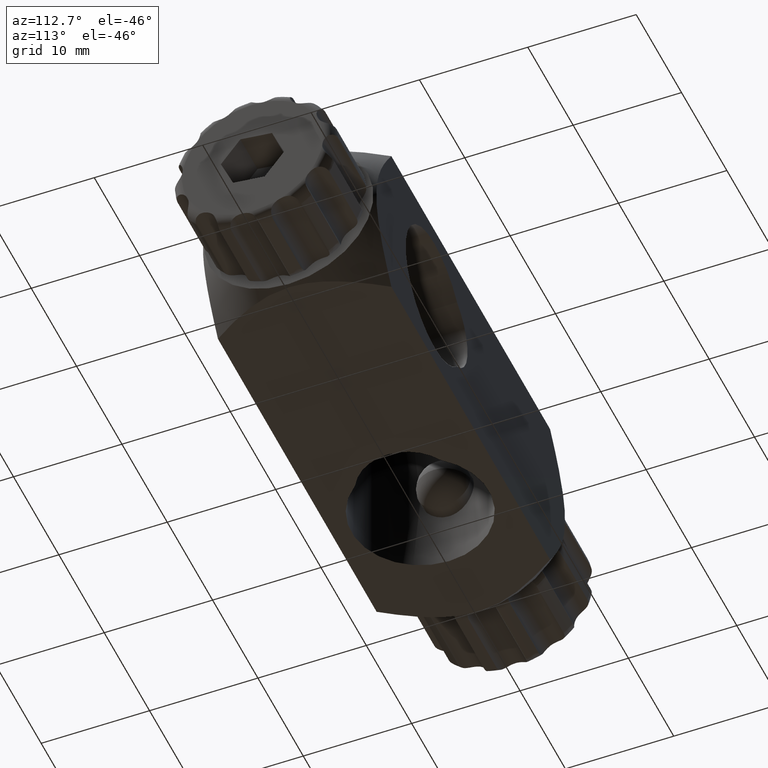
[diagram: clean part render]
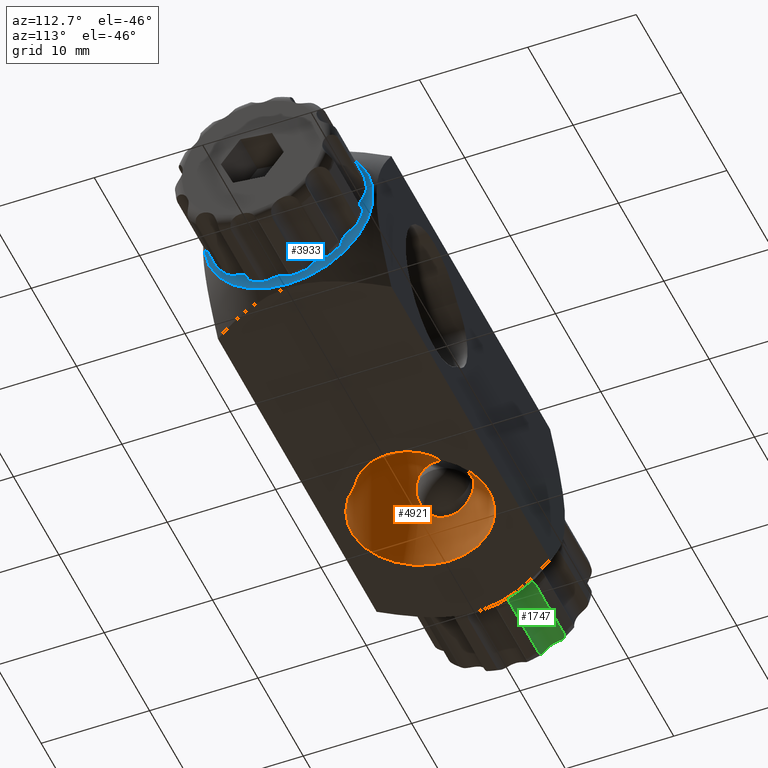
[diagram: same view with three faces highlighted in distinct colors, each labeled with its STEP entity id]
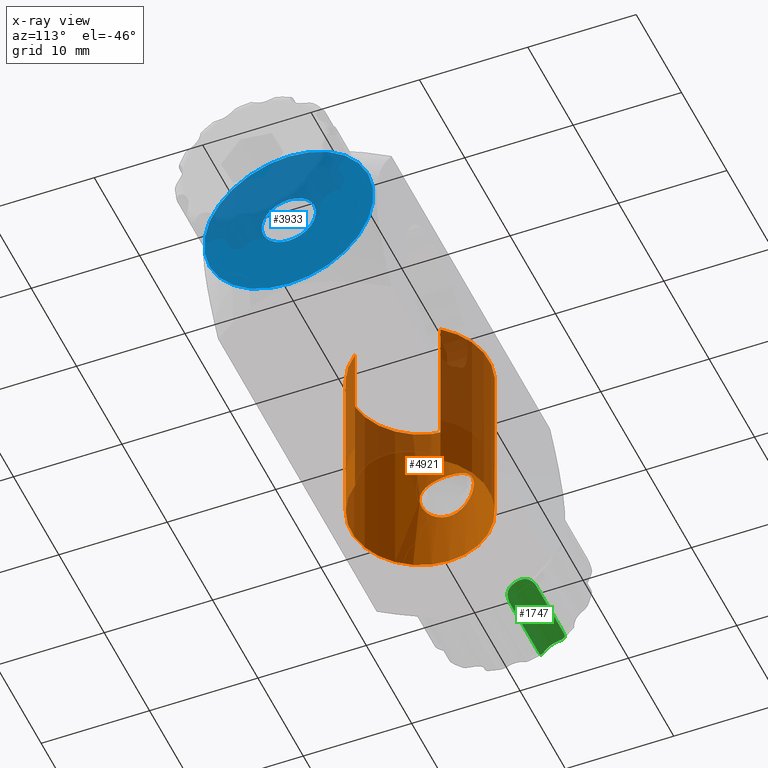
[diagram: x-ray of the same camera — body ghosted, the three highlighted faces saturated]
A machine part, auxiliary view with three faces highlighted in distinct colors.
The next image is the same camera in x-ray (body ghosted, the three faces saturated) — at least one of them is partly hidden behind the body in this view.
Their STEP definitions:

[orange] entity #4921 — the highlighted cylindrical surface (partial cylindrical patch) has radius 6.35 mm, axis along (-0, -0, 1).
#31 = FACE_OUTER_BOUND ( 'NONE', #5584, .T. ) ;
#37 = CARTESIAN_POINT ( 'NONE',  ( -3.015625000000004400, -3.934273231408192300, -8.000000000000001800 ) ) ;
#122 = CARTESIAN_POINT ( 'NONE',  ( -3.015625000000005300, 3.934273231408183000, -8.000000000000001800 ) ) ;
#158 = EDGE_CURVE ( 'NONE', #611, #4050, #5138, .T. ) ;
#212 = CARTESIAN_POINT ( 'NONE',  ( -14.13172896268371700, 1.654839254193530000, 1.880834396446849200 ) ) ;
#248 = CIRCLE ( 'NONE', #2077, 6.349999999999997900 ) ;
#252 = CARTESIAN_POINT ( 'NONE',  ( -14.25347996361839600, -1.113493676438426400, -2.244314672657440600 ) ) ;
#292 = CARTESIAN_POINT ( 'NONE',  ( -14.13216469679574200, -1.653323227653048100, -1.882326954693307900 ) ) ;
#313 = CARTESIAN_POINT ( 'NONE',  ( -13.94044340418666600, -2.244592129086695900, -1.112900411000519800 ) ) ;
#340 = CARTESIAN_POINT ( 'NONE',  ( -14.22570982550885400, 1.257857552226984600, -2.166622944121659800 ) ) ;
#360 = CARTESIAN_POINT ( 'NONE',  ( -14.16496897687906700, 1.528013732677355100, -1.985355040399142700 ) ) ;
#363 = CARTESIAN_POINT ( 'NONE',  ( -13.89126683038930900, -2.370653256234590300, 0.8102924420412346300 ) ) ;
#446 = CARTESIAN_POINT ( 'NONE',  ( -13.84408939167750700, -2.484020929136849800, 0.3273140950940555100 ) ) ;
#483 = EDGE_CURVE ( 'NONE', #544, #5245, #5664, .T. ) ;
#544 = VERTEX_POINT ( 'NONE', #4474 ) ;
#611 = VERTEX_POINT ( 'NONE', #4125 ) ;
#671 = CARTESIAN_POINT ( 'NONE',  ( -13.87140204642246600, 2.418754730980461300, 0.6533290556737960700 ) ) ;
#688 = CARTESIAN_POINT ( 'NONE',  ( -14.06527732931933300, -1.883913814681461800, 1.651408318361197600 ) ) ;
#691 = CARTESIAN_POINT ( 'NONE',  ( -14.34999999999999800, 0.1670052560347165500, 2.499999999999998200 ) ) ;
#763 = CARTESIAN_POINT ( 'NONE',  ( -14.31822033418063000, 0.6551695558147968600, -2.418329425781971000 ) ) ;
#789 = ORIENTED_EDGE ( 'NONE', *, *, #3823, .F. ) ;
#816 = CARTESIAN_POINT ( 'NONE',  ( -3.015625000000004400, -3.934273231408192300, -8.000000000000001800 ) ) ;
#844 = DIRECTION ( 'NONE',  ( 1.000000000000000000, 0.0000000000000000000, 0.0000000000000000000 ) ) ;
#1050 = ORIENTED_EDGE ( 'NONE', *, *, #4034, .F. ) ;
#1122 = CARTESIAN_POINT ( 'NONE',  ( -13.84447391096468400, -2.483115506086709600, -0.3333056063548998600 ) ) ;
#1130 = CARTESIAN_POINT ( 'NONE',  ( -13.83720769546859400, 2.499901264329393900, 0.1664818283837850900 ) ) ;
#1145 = CARTESIAN_POINT ( 'NONE',  ( -14.35000000000000000, -0.3337368907152389900, 2.499999999999999600 ) ) ;
#1195 = CARTESIAN_POINT ( 'NONE',  ( -14.29965261527076600, 0.8125500498634692400, 2.369929866894745700 ) ) ;
#1213 = CARTESIAN_POINT ( 'NONE',  ( -14.22536665960977600, -1.259462481610970300, 2.165618936399530200 ) ) ;
#1233 = CARTESIAN_POINT ( 'NONE',  ( -8.000000000000000000, -4.959040015105592400E-015, -8.000000000000001800 ) ) ;
#1351 = CARTESIAN_POINT ( 'NONE',  ( -13.83713559730295200, -2.500069603924885100, 0.1636528481095288200 ) ) ;
#1676 = CARTESIAN_POINT ( 'NONE',  ( -14.31823850436184400, -0.6547901640278633900, -2.418375358319274400 ) ) ;
#1727 = ORIENTED_EDGE ( 'NONE', *, *, #2632, .T. ) ;
#1773 = CARTESIAN_POINT ( 'NONE',  ( -14.34999999999999800, 3.061961285247820200E-016, -2.499999999999998700 ) ) ;
#1959 = CARTESIAN_POINT ( 'NONE',  ( -13.87128775960040600, -2.419033037863248300, 0.6525133370002852400 ) ) ;
#2008 = EDGE_LOOP ( 'NONE', ( #3451, #5899 ) ) ;
#2033 = AXIS2_PLACEMENT_3D ( 'NONE', #1233, #2598, #844 ) ;
#2035 = CARTESIAN_POINT ( 'NONE',  ( -14.16491645915140100, 1.528243350837978900, 1.985197300683375400 ) ) ;
#2055 = CARTESIAN_POINT ( 'NONE',  ( -13.89158767130358800, 2.369854069492605600, 0.8125384149744500100 ) ) ;
#2077 = AXIS2_PLACEMENT_3D ( 'NONE', #2860, #3302, #4695 ) ;
#2142 = CARTESIAN_POINT ( 'NONE',  ( -14.06526764141080600, -1.883998408115061100, -1.651418316987550300 ) ) ;
#2165 = CARTESIAN_POINT ( 'NONE',  ( -13.94074800801573800, 2.243805662632202500, -1.114709136041922100 ) ) ;
#2205 = VERTEX_POINT ( 'NONE', #37 ) ;
#2231 = CARTESIAN_POINT ( 'NONE',  ( -14.25371390070333200, 1.112062076422148500, -2.244956815813538700 ) ) ;
#2338 = CARTESIAN_POINT ( 'NONE',  ( -14.34999999999999800, 3.061961285247820200E-016, -2.499999999999998700 ) ) ;
#2375 = AXIS2_PLACEMENT_3D ( 'NONE', #4859, #5316, #5781 ) ;
#2573 = CARTESIAN_POINT ( 'NONE',  ( -14.34345367860668400, -0.3308827349372127100, -2.483506824704531100 ) ) ;
#2596 = CARTESIAN_POINT ( 'NONE',  ( -14.16494170497117700, -1.528067802851343000, -1.985256475623171000 ) ) ;
#2598 = DIRECTION ( 'NONE',  ( -0.0000000000000000000, -0.0000000000000000000, 1.000000000000000000 ) ) ;
#2625 = CARTESIAN_POINT ( 'NONE',  ( -13.83712350047344600, 2.500097848415963500, -0.1635031465250330900 ) ) ;
#2632 = EDGE_CURVE ( 'NONE', #5251, #611, #5835, .T. ) ;
#2860 = CARTESIAN_POINT ( 'NONE',  ( -8.000000000000000000, -4.959040015105592400E-015, -8.000000000000001800 ) ) ;
#2946 = CYLINDRICAL_SURFACE ( 'NONE', #2033, 6.349999999999997900 ) ;
#2979 = CARTESIAN_POINT ( 'NONE',  ( -14.29982596625635200, -0.8112167513848015400, -2.370388976443850800 ) ) ;
#3026 = CARTESIAN_POINT ( 'NONE',  ( -14.22543969174414400, -1.259125919144092400, -2.165833881869569900 ) ) ;
#3050 = CARTESIAN_POINT ( 'NONE',  ( -13.96981147398342500, -2.166314103494729500, -1.258246010290663200 ) ) ;
#3055 = CARTESIAN_POINT ( 'NONE',  ( -13.96970248567963900, 2.166626170258861600, -1.257768098644152200 ) ) ;
#3075 = CARTESIAN_POINT ( 'NONE',  ( -14.13234225935973500, 1.652601093403433400, -1.882846977765329200 ) ) ;
#3088 = DIRECTION ( 'NONE',  ( -0.0000000000000000000, -0.0000000000000000000, 1.000000000000000000 ) ) ;
#3119 = CARTESIAN_POINT ( 'NONE',  ( -14.29977300219576700, 0.8114676422826513400, -2.370239108658077000 ) ) ;
#3302 = DIRECTION ( 'NONE',  ( 0.0000000000000000000, 0.0000000000000000000, 1.000000000000000000 ) ) ;
#3397 = CARTESIAN_POINT ( 'NONE',  ( -13.96482053884998300, 2.182079360770837500, 1.262631224585148100 ) ) ;
#3433 = CARTESIAN_POINT ( 'NONE',  ( -14.32301987721942600, -0.6606950071700666800, 2.433529377776407500 ) ) ;
#3451 = ORIENTED_EDGE ( 'NONE', *, *, #483, .T. ) ;
#3498 = CARTESIAN_POINT ( 'NONE',  ( -13.89135685853433200, -2.370437940487647200, -0.8110272011836292500 ) ) ;
#3823 = EDGE_CURVE ( 'NONE', #2205, #4050, #5666, .T. ) ;
#3842 = CARTESIAN_POINT ( 'NONE',  ( -13.87163103844635100, -2.418199094547111500, -0.6551857621525335500 ) ) ;
#3850 = CARTESIAN_POINT ( 'NONE',  ( -13.84425515653929200, 2.483630025716011300, 0.3298411723691566100 ) ) ;
#3919 = CARTESIAN_POINT ( 'NONE',  ( -14.31841640803168000, 0.6528239031078418900, 2.418837073343113300 ) ) ;
#3934 = CARTESIAN_POINT ( 'NONE',  ( -14.13173334403027000, -1.654861486774669800, 1.880881217591940900 ) ) ;
#4020 = CARTESIAN_POINT ( 'NONE',  ( -13.96949147208055400, -2.167217575877309300, 1.256806913575973000 ) ) ;
#4025 = CARTESIAN_POINT ( 'NONE',  ( -14.03214572902389200, 1.986160777228027900, -1.526897153910001100 ) ) ;
#4034 = EDGE_CURVE ( 'NONE', #5251, #2205, #248, .T. ) ;
#4036 = VECTOR ( 'NONE', #3088, 1000.000000000000000 ) ;
#4050 = VERTEX_POINT ( 'NONE', #4174 ) ;
#4095 = CARTESIAN_POINT ( 'NONE',  ( -3.015625000000005300, 3.934273231408183000, -8.000000000000001800 ) ) ;
#4125 = CARTESIAN_POINT ( 'NONE',  ( -3.015625000000005300, 3.934273231408183000, 7.999999999999998200 ) ) ;
#4174 = CARTESIAN_POINT ( 'NONE',  ( -3.015625000000004400, -3.934273231408192300, 7.999999999999998200 ) ) ;
#4318 = CARTESIAN_POINT ( 'NONE',  ( -14.03209565870216800, -1.986323845877215000, 1.526732857609161000 ) ) ;
#4384 = CARTESIAN_POINT ( 'NONE',  ( -14.25326463729966000, 1.114693694482277200, 2.243716364653591400 ) ) ;
#4457 = FACE_BOUND ( 'NONE', #2008, .T. ) ;
#4474 = CARTESIAN_POINT ( 'NONE',  ( -14.34999999999999800, -1.812984477257553200E-017, 2.499999999999998700 ) ) ;
#4496 = CARTESIAN_POINT ( 'NONE',  ( -13.87140766354362000, 2.418739646384807900, -0.6532222925862508600 ) ) ;
#4553 = VECTOR ( 'NONE', #4579, 1000.000000000000000 ) ;
#4579 = DIRECTION ( 'NONE',  ( -0.0000000000000000000, -0.0000000000000000000, 1.000000000000000000 ) ) ;
#4695 = DIRECTION ( 'NONE',  ( 1.000000000000000000, 0.0000000000000000000, 0.0000000000000000000 ) ) ;
#4761 = CARTESIAN_POINT ( 'NONE',  ( -14.34999999999999800, -1.812984477257553200E-017, 2.499999999999998700 ) ) ;
#4778 = CARTESIAN_POINT ( 'NONE',  ( -14.03252207850613300, 1.996884946228188600, 1.538367461901342300 ) ) ;
#4797 = CARTESIAN_POINT ( 'NONE',  ( -14.25293111887699200, -1.116692431976079400, 2.242798206174033500 ) ) ;
#4824 = CARTESIAN_POINT ( 'NONE',  ( -14.34342725948733000, 0.3309011292607259600, 2.483436385032243200 ) ) ;
#4838 = EDGE_CURVE ( 'NONE', #5245, #544, #5438, .T. ) ;
#4841 = CARTESIAN_POINT ( 'NONE',  ( -14.34999999999999800, 3.061961285247820200E-016, -2.499999999999998700 ) ) ;
#4848 = CARTESIAN_POINT ( 'NONE',  ( -14.22574487267798700, 1.257705636474601800, 2.166728546449939500 ) ) ;
#4859 = CARTESIAN_POINT ( 'NONE',  ( -8.000000000000000000, -4.959040015105592400E-015, 7.999999999999998200 ) ) ;
#4895 = CARTESIAN_POINT ( 'NONE',  ( -13.84433902816496700, 2.483431245752584000, -0.3310137280311985000 ) ) ;
#4921 = ADVANCED_FACE ( 'NONE', ( #4457, #31 ), #2946, .F. ) ;
#4957 = CARTESIAN_POINT ( 'NONE',  ( -14.34999999999999600, 0.1644882718953178400, -2.499999999999998700 ) ) ;
#5138 = CIRCLE ( 'NONE', #2375, 6.349999999999997900 ) ;
#5245 = VERTEX_POINT ( 'NONE', #2338 ) ;
#5251 = VERTEX_POINT ( 'NONE', #122 ) ;
#5305 = CARTESIAN_POINT ( 'NONE',  ( -14.16496181220272600, -1.527966505931567200, 1.985313445536793600 ) ) ;
#5316 = DIRECTION ( 'NONE',  ( 0.0000000000000000000, 0.0000000000000000000, 1.000000000000000000 ) ) ;
#5349 = CARTESIAN_POINT ( 'NONE',  ( -14.06599150924530900, 1.881610738067601300, -1.654008508438500800 ) ) ;
#5395 = CARTESIAN_POINT ( 'NONE',  ( -14.34354031304847300, 0.3296234743597767400, -2.483729599537861000 ) ) ;
#5438 = B_SPLINE_CURVE_WITH_KNOTS ( 'NONE', 3,
 ( #4841, #5716, #2573, #1676, #2979, #252, #3026, #2596, #292, #2142, #5783, #3050, #313, #3498, #3842, #1122, #5529, #1351, #446, #1959, #363, #5886, #4020, #4318, #688, #3934, #5305, #1213, #4797, #3433, #1145, #5739 ),
 .UNSPECIFIED., .F., .F.,
 ( 4, 2, 2, 2, 2, 2, 2, 2, 2, 2, 2, 2, 2, 2, 2, 4 ),
 ( 0.007896926305771944500, 0.008390079877340495300, 0.008883233448909047900, 0.009376387020477598700, 0.009869540592046151300, 0.01036269416361470200, 0.01085584773518325300, 0.01134900130675180500, 0.01184215487832035800, 0.01233530844988890900, 0.01282846202145746000, 0.01332161559302601200, 0.01381476916459456300, 0.01430792273616311400, 0.01480107630773166500, 0.01578738345086876500 ),
 .UNSPECIFIED. ) ;
#5440 = ORIENTED_EDGE ( 'NONE', *, *, #158, .T. ) ;
#5529 = CARTESIAN_POINT ( 'NONE',  ( -13.83719541107450000, -2.499929946758759200, -0.1657725564206506700 ) ) ;
#5584 = EDGE_LOOP ( 'NONE', ( #5440, #789, #1050, #1727 ) ) ;
#5664 = B_SPLINE_CURVE_WITH_KNOTS ( 'NONE', 3,
 ( #4761, #691, #4824, #3919, #1195, #4384, #4848, #2035, #212, #4778, #3397, #2055, #671, #3850, #1130, #2625, #4895, #4496, #5810, #2165, #3055, #4025, #5349, #3075, #360, #340, #2231, #3119, #763, #5395, #4957, #1773 ),
 .UNSPECIFIED., .F., .F.,
 ( 4, 2, 2, 2, 2, 2, 2, 2, 2, 2, 2, 2, 2, 2, 2, 4 ),
 ( 1.759411807129300900E-020, 0.0004935578941107453400, 0.0009871157882214906800, 0.001480673682332236300, 0.001974231576442982200, 0.002961347364664474000, 0.003454905258775220700, 0.003948463152885967900, 0.004442021046996715500, 0.004935578941107461400, 0.005429136835218209000, 0.005922694729328955800, 0.006416252623439703400, 0.006909810517550450100, 0.007403368411661196900, 0.007896926305771944500 ),
 .UNSPECIFIED. ) ;
#5666 = LINE ( 'NONE', #816, #4036 ) ;
#5716 = CARTESIAN_POINT ( 'NONE',  ( -14.35000000000000000, -0.1643535231311941700, -2.499999999999998700 ) ) ;
#5739 = CARTESIAN_POINT ( 'NONE',  ( -14.34999999999999800, -1.812984477257553200E-017, 2.499999999999998700 ) ) ;
#5781 = DIRECTION ( 'NONE',  ( 1.000000000000000000, 0.0000000000000000000, 0.0000000000000000000 ) ) ;
#5783 = CARTESIAN_POINT ( 'NONE',  ( -14.03207835756312400, -1.986352566419873100, -1.526598604509296300 ) ) ;
#5810 = CARTESIAN_POINT ( 'NONE',  ( -13.89118823250886000, 2.370875778178274600, -0.8100545377215174800 ) ) ;
#5835 = LINE ( 'NONE', #4095, #4553 ) ;
#5886 = CARTESIAN_POINT ( 'NONE',  ( -13.94014848355173800, -2.245363605632499000, 1.111266386347497200 ) ) ;
#5899 = ORIENTED_EDGE ( 'NONE', *, *, #4838, .T. ) ;

[blue] entity #3933 — the highlighted planar face has unit normal (1, 0, 0).
#55 = EDGE_CURVE ( 'NONE', #1850, #5602, #501, .T. ) ;
#282 = EDGE_CURVE ( 'NONE', #5034, #2828, #3572, .T. ) ;
#501 = CIRCLE ( 'NONE', #4376, 7.813708498984763800 ) ;
#624 = DIRECTION ( 'NONE',  ( 1.000000000000000000, -0.0000000000000000000, -0.0000000000000000000 ) ) ;
#783 = CARTESIAN_POINT ( 'NONE',  ( 21.00000000000000000, 3.061616997868382600E-016, 2.499999999999999600 ) ) ;
#939 = DIRECTION ( 'NONE',  ( 0.0000000000000000000, 0.0000000000000000000, 1.000000000000000000 ) ) ;
#949 = DIRECTION ( 'NONE',  ( 0.0000000000000000000, 0.0000000000000000000, -1.000000000000000000 ) ) ;
#1085 = CARTESIAN_POINT ( 'NONE',  ( 21.00000000000000000, 0.0000000000000000000, 0.0000000000000000000 ) ) ;
#1121 = CARTESIAN_POINT ( 'NONE',  ( 21.00000000000000000, -6.390832896180910600E-016, -5.875514437286082500E-016 ) ) ;
#1156 = EDGE_CURVE ( 'NONE', #5602, #1850, #1357, .T. ) ;
#1357 = CIRCLE ( 'NONE', #1878, 7.813708498984763800 ) ;
#1377 = CARTESIAN_POINT ( 'NONE',  ( 21.00000000000000000, -8.000000000000000000, 7.999999999999998200 ) ) ;
#1388 = CIRCLE ( 'NONE', #4776, 2.499999999999999600 ) ;
#1413 = CARTESIAN_POINT ( 'NONE',  ( 21.00000000000000000, 5.355791328538840600E-016, -7.813708498984763800 ) ) ;
#1671 = DIRECTION ( 'NONE',  ( 0.0000000000000000000, 0.0000000000000000000, 1.000000000000000000 ) ) ;
#1738 = ORIENTED_EDGE ( 'NONE', *, *, #282, .F. ) ;
#1850 = VERTEX_POINT ( 'NONE', #1899 ) ;
#1878 = AXIS2_PLACEMENT_3D ( 'NONE', #4647, #3221, #939 ) ;
#1899 = CARTESIAN_POINT ( 'NONE',  ( 21.00000000000000000, -6.390832896180910600E-016, 7.813708498984763800 ) ) ;
#1931 = EDGE_LOOP ( 'NONE', ( #3485, #5329 ) ) ;
#2155 = DIRECTION ( 'NONE',  ( -1.000000000000000000, 1.226948711654355100E-018, -1.226948711654355100E-018 ) ) ;
#2267 = FACE_BOUND ( 'NONE', #5595, .T. ) ;
#2784 = DIRECTION ( 'NONE',  ( 1.000000000000000000, -0.0000000000000000000, -0.0000000000000000000 ) ) ;
#2828 = VERTEX_POINT ( 'NONE', #3382 ) ;
#3189 = DIRECTION ( 'NONE',  ( 0.0000000000000000000, 0.0000000000000000000, -1.000000000000000000 ) ) ;
#3221 = DIRECTION ( 'NONE',  ( -1.000000000000000000, 1.226948711654355100E-018, -1.226948711654355100E-018 ) ) ;
#3382 = CARTESIAN_POINT ( 'NONE',  ( 21.00000000000000000, 0.0000000000000000000, -2.499999999999999600 ) ) ;
#3485 = ORIENTED_EDGE ( 'NONE', *, *, #55, .F. ) ;
#3572 = CIRCLE ( 'NONE', #5531, 2.499999999999999600 ) ;
#3656 = CARTESIAN_POINT ( 'NONE',  ( 21.00000000000000000, 0.0000000000000000000, 0.0000000000000000000 ) ) ;
#3801 = DIRECTION ( 'NONE',  ( 0.0000000000000000000, 0.0000000000000000000, -1.000000000000000000 ) ) ;
#3933 = ADVANCED_FACE ( 'NONE', ( #2267, #5532 ), #5017, .T. ) ;
#4183 = ORIENTED_EDGE ( 'NONE', *, *, #5320, .F. ) ;
#4376 = AXIS2_PLACEMENT_3D ( 'NONE', #1121, #2155, #1671 ) ;
#4647 = CARTESIAN_POINT ( 'NONE',  ( 21.00000000000000000, -6.390832896180910600E-016, -5.875514437286082500E-016 ) ) ;
#4776 = AXIS2_PLACEMENT_3D ( 'NONE', #1085, #624, #3801 ) ;
#5017 = PLANE ( 'NONE',  #5865 ) ;
#5034 = VERTEX_POINT ( 'NONE', #783 ) ;
#5320 = EDGE_CURVE ( 'NONE', #2828, #5034, #1388, .T. ) ;
#5329 = ORIENTED_EDGE ( 'NONE', *, *, #1156, .F. ) ;
#5495 = DIRECTION ( 'NONE',  ( 1.000000000000000000, 0.0000000000000000000, 0.0000000000000000000 ) ) ;
#5531 = AXIS2_PLACEMENT_3D ( 'NONE', #3656, #2784, #949 ) ;
#5532 = FACE_OUTER_BOUND ( 'NONE', #1931, .T. ) ;
#5595 = EDGE_LOOP ( 'NONE', ( #4183, #1738 ) ) ;
#5602 = VERTEX_POINT ( 'NONE', #1413 ) ;
#5865 = AXIS2_PLACEMENT_3D ( 'NONE', #1377, #5495, #3189 ) ;

[green] entity #1747 — the highlighted cylindrical surface (edge-blend (fillet) strip) has radius 1.5 mm, axis along (1, 0, -0).
#13 = CARTESIAN_POINT ( 'NONE',  ( -22.00000000000001400, 2.506597273269380200, -7.068731860074954900 ) ) ;
#200 = VERTEX_POINT ( 'NONE', #13 ) ;
#214 = CARTESIAN_POINT ( 'NONE',  ( -21.20119712419117900, 2.525241827674029600, -6.644368451778462700 ) ) ;
#285 = CARTESIAN_POINT ( 'NONE',  ( -21.15333974141502800, 4.411884589735390900, -5.483248911126947800 ) ) ;
#309 = VECTOR ( 'NONE', #4968, 1000.000000000000000 ) ;
#354 = ORIENTED_EDGE ( 'NONE', *, *, #4179, .F. ) ;
#385 = CARTESIAN_POINT ( 'NONE',  ( -28.91852380937766800, 2.594636087784284200, -6.396706854510103600 ) ) ;
#425 = ORIENTED_EDGE ( 'NONE', *, *, #5488, .F. ) ;
#463 = CARTESIAN_POINT ( 'NONE',  ( -28.94361272516191300, 2.629807507927132400, -6.310887486245115400 ) ) ;
#532 = CARTESIAN_POINT ( 'NONE',  ( -27.99999999999998900, 4.868402726730770300, -5.705142845745464300 ) ) ;
#550 = CARTESIAN_POINT ( 'NONE',  ( -29.00000000000000000, 4.000000000000082600, -6.928203230275493700 ) ) ;
#618 = CARTESIAN_POINT ( 'NONE',  ( -21.04540171856379900, 2.620455010895744100, -6.313943153522097300 ) ) ;
#651 = CARTESIAN_POINT ( 'NONE',  ( -24.99999999999999600, 4.868402726730766800, -5.705142845745474900 ) ) ;
#692 = FACE_OUTER_BOUND ( 'NONE', #708, .T. ) ;
#708 = EDGE_LOOP ( 'NONE', ( #1250, #354, #1830, #425, #2881, #3406 ) ) ;
#837 = EDGE_CURVE ( 'NONE', #1645, #3007, #2495, .T. ) ;
#851 = CARTESIAN_POINT ( 'NONE',  ( -28.97727455232851000, 2.715755261027712900, -6.147676713376389700 ) ) ;
#884 = CARTESIAN_POINT ( 'NONE',  ( -28.99876990541139700, 2.949145276068269300, -5.853739619637019900 ) ) ;
#903 = CARTESIAN_POINT ( 'NONE',  ( -28.84668284873058800, 2.542704710136590100, -6.562380101766760500 ) ) ;
#996 = CARTESIAN_POINT ( 'NONE',  ( -29.00000000000000400, 3.250000000000063900, -5.629165124598841000 ) ) ;
#1027 = DIRECTION ( 'NONE',  ( 0.0000000000000000000, -1.734723475976799600E-015, -1.000000000000000000 ) ) ;
#1078 = CARTESIAN_POINT ( 'NONE',  ( -21.00000000000000400, 3.250000000000062600, -5.629165124598825900 ) ) ;
#1096 = CARTESIAN_POINT ( 'NONE',  ( -21.62473436945947100, 2.498681493769682000, -7.013783335347980600 ) ) ;
#1132 = CARTESIAN_POINT ( 'NONE',  ( -21.01882705403932800, 2.709274268148880200, -6.141457041449900300 ) ) ;
#1202 = CARTESIAN_POINT ( 'NONE',  ( -21.38806982832167200, 4.685605186964673800, -5.593010647076644300 ) ) ;
#1241 = CARTESIAN_POINT ( 'NONE',  ( -21.80970709074877300, 4.868402726730755200, -5.705142845745470500 ) ) ;
#1250 = ORIENTED_EDGE ( 'NONE', *, *, #1672, .F. ) ;
#1311 = CARTESIAN_POINT ( 'NONE',  ( -28.19023267080076400, 2.506597273269381500, -7.068731860074937100 ) ) ;
#1365 = CARTESIAN_POINT ( 'NONE',  ( -28.37692889517565200, 2.498667560627065900, -7.012831486871971400 ) ) ;
#1441 = CARTESIAN_POINT ( 'NONE',  ( -28.98116923037342100, 3.964053493655804100, -5.417028248203305200 ) ) ;
#1451 = B_SPLINE_CURVE_WITH_KNOTS ( 'NONE', 3,
 ( #2066, #4272, #2895, #2006, #2912, #2934, #3040, #4352, #3509, #285, #5731, #4853, #1202, #3880, #1241, #3063 ),
 .UNSPECIFIED., .F., .F.,
 ( 4, 2, 2, 2, 2, 2, 2, 4 ),
 ( 0.002339469482553174300, 0.002620738270428532500, 0.002902007058303890200, 0.003183275846179248400, 0.003464544634054606500, 0.003745813421929964700, 0.004027082209805322800, 0.004589619785556047800 ),
 .UNSPECIFIED. ) ;
#1458 = DIRECTION ( 'NONE',  ( 1.000000000000000000, 2.958228394578804800E-031, -9.860761315262730800E-032 ) ) ;
#1499 = CARTESIAN_POINT ( 'NONE',  ( -28.95464743911767500, 4.157683881513740700, -5.426326424277246700 ) ) ;
#1645 = VERTEX_POINT ( 'NONE', #4802 ) ;
#1672 = EDGE_CURVE ( 'NONE', #3644, #5072, #1925, .T. ) ;
#1734 = CARTESIAN_POINT ( 'NONE',  ( -22.00000000000000700, 4.868402726730770300, -5.705142845745452700 ) ) ;
#1747 = ADVANCED_FACE ( 'NONE', ( #692 ), #3335, .F. ) ;
#1830 = ORIENTED_EDGE ( 'NONE', *, *, #5761, .F. ) ;
#1922 = CARTESIAN_POINT ( 'NONE',  ( -28.18804614191825000, 4.868402726730747300, -5.705142845745463400 ) ) ;
#1925 = LINE ( 'NONE', #651, #4058 ) ;
#1992 = B_SPLINE_CURVE_WITH_KNOTS ( 'NONE', 3,
 ( #2949, #2474, #1096, #2018, #5270, #214, #4739, #618, #1132, #2538, #4286, #1078 ),
 .UNSPECIFIED., .F., .F.,
 ( 4, 2, 2, 2, 2, 4 ),
 ( 8.835109272904627900E-005, 0.0006511306901850808400, 0.0009325204889130973400, 0.001213910287641113700, 0.001776689885097144100, 0.002339469482553174300 ),
 .UNSPECIFIED. ) ;
#2006 = CARTESIAN_POINT ( 'NONE',  ( -21.00123062124037400, 3.594967437846115800, -5.480887119189629800 ) ) ;
#2018 = CARTESIAN_POINT ( 'NONE',  ( -21.38812726182524300, 2.500871915247834000, -6.854478821898196000 ) ) ;
#2038 = VERTEX_POINT ( 'NONE', #3097 ) ;
#2066 = CARTESIAN_POINT ( 'NONE',  ( -21.00000000000000400, 3.250000000000062600, -5.629165124598825900 ) ) ;
#2105 = LINE ( 'NONE', #2171, #309 ) ;
#2171 = CARTESIAN_POINT ( 'NONE',  ( -25.00000000000000400, 2.506597273269376200, -7.068731860074969100 ) ) ;
#2236 = CARTESIAN_POINT ( 'NONE',  ( -29.00000000000000400, 3.250000000000063900, -5.629165124598841000 ) ) ;
#2474 = CARTESIAN_POINT ( 'NONE',  ( -21.81187099171115000, 2.506597273269382000, -7.068731860074936300 ) ) ;
#2495 = B_SPLINE_CURVE_WITH_KNOTS ( 'NONE', 3,
 ( #2236, #5470, #4518, #884, #5877, #5024, #851, #463, #385, #903, #4032, #4054, #3197, #1365, #1311, #4481 ),
 .UNSPECIFIED., .F., .F.,
 ( 4, 2, 2, 2, 2, 2, 2, 4 ),
 ( 0.002345318102255120100, 0.002626582659963867100, 0.002907847217672614200, 0.003189111775381361700, 0.003470376333090108700, 0.003751640890798855800, 0.004032905448507603300, 0.004595434563925097400 ),
 .UNSPECIFIED. ) ;
#2538 = CARTESIAN_POINT ( 'NONE',  ( -20.99751958455902200, 2.941840095469301400, -5.848740356000595500 ) ) ;
#2881 = ORIENTED_EDGE ( 'NONE', *, *, #837, .F. ) ;
#2895 = CARTESIAN_POINT ( 'NONE',  ( -20.99983055740414500, 3.418043992590127800, -5.542525595595199300 ) ) ;
#2912 = CARTESIAN_POINT ( 'NONE',  ( -21.00280470108762600, 3.685641929870850000, -5.458513878442869500 ) ) ;
#2934 = CARTESIAN_POINT ( 'NONE',  ( -21.01346524178738300, 3.871283137085106000, -5.430792212436067200 ) ) ;
#2949 = CARTESIAN_POINT ( 'NONE',  ( -22.00000000000001400, 2.506597273269380200, -7.068731860074954900 ) ) ;
#3007 = VERTEX_POINT ( 'NONE', #4961 ) ;
#3040 = CARTESIAN_POINT ( 'NONE',  ( -21.02272735563643400, 3.966183132261938300, -5.425750862270201800 ) ) ;
#3063 = CARTESIAN_POINT ( 'NONE',  ( -22.00000000000000700, 4.868402726730770300, -5.705142845745452700 ) ) ;
#3097 = CARTESIAN_POINT ( 'NONE',  ( -21.00000000000000400, 3.250000000000062600, -5.629165124598825900 ) ) ;
#3197 = CARTESIAN_POINT ( 'NONE',  ( -28.61189655131730100, 2.500886881392177400, -6.854378326277568200 ) ) ;
#3335 = CYLINDRICAL_SURFACE ( 'NONE', #3416, 1.500000000000006400 ) ;
#3406 = ORIENTED_EDGE ( 'NONE', *, *, #5217, .F. ) ;
#3416 = AXIS2_PLACEMENT_3D ( 'NONE', #550, #1458, #1027 ) ;
#3509 = CARTESIAN_POINT ( 'NONE',  ( -21.08146786490934600, 4.242377168315923300, -5.445369723786430200 ) ) ;
#3571 = CARTESIAN_POINT ( 'NONE',  ( -27.99999999999998900, 4.868402726730770300, -5.705142845745464300 ) ) ;
#3644 = VERTEX_POINT ( 'NONE', #1734 ) ;
#3717 = CARTESIAN_POINT ( 'NONE',  ( -28.37549100700441700, 4.824655615642313900, -5.670744479113741600 ) ) ;
#3767 = CARTESIAN_POINT ( 'NONE',  ( -28.80972844213308500, 4.498500859593178800, -5.502722595587793600 ) ) ;
#3880 = CARTESIAN_POINT ( 'NONE',  ( -21.62319506584616800, 4.824024092235117900, -5.670364161911533300 ) ) ;
#4032 = CARTESIAN_POINT ( 'NONE',  ( -28.79900949073919100, 2.525344653063533100, -6.643943978407359700 ) ) ;
#4054 = CARTESIAN_POINT ( 'NONE',  ( -28.68176762438580600, 2.504606435365072800, -6.789603802537178500 ) ) ;
#4058 = VECTOR ( 'NONE', #5189, 1000.000000000000000 ) ;
#4179 = EDGE_CURVE ( 'NONE', #2038, #3644, #1451, .T. ) ;
#4272 = CARTESIAN_POINT ( 'NONE',  ( -21.00000000000001100, 3.331229636390438600, -5.582267172162685800 ) ) ;
#4286 = CARTESIAN_POINT ( 'NONE',  ( -21.00000000000000400, 3.087470832030226200, -5.723001383477398300 ) ) ;
#4352 = CARTESIAN_POINT ( 'NONE',  ( -21.05639239723287300, 4.150507068943317900, -5.432925891161961100 ) ) ;
#4481 = CARTESIAN_POINT ( 'NONE',  ( -27.99999999999999600, 2.506597273269381100, -7.068731860074962900 ) ) ;
#4518 = CARTESIAN_POINT ( 'NONE',  ( -29.00016914116274700, 3.090927275205133100, -5.731393102297811700 ) ) ;
#4641 = CARTESIAN_POINT ( 'NONE',  ( -29.00000000000000700, 3.412592311041748000, -5.535292410050765000 ) ) ;
#4739 = CARTESIAN_POINT ( 'NONE',  ( -21.15402759177800000, 2.542321330843393000, -6.563802554919637300 ) ) ;
#4802 = CARTESIAN_POINT ( 'NONE',  ( -29.00000000000000400, 3.250000000000063900, -5.629165124598841000 ) ) ;
#4853 = CARTESIAN_POINT ( 'NONE',  ( -21.31828685240397200, 4.627725828876865700, -5.563879639539718100 ) ) ;
#4961 = CARTESIAN_POINT ( 'NONE',  ( -27.99999999999999600, 2.506597273269381100, -7.068731860074962900 ) ) ;
#4968 = DIRECTION ( 'NONE',  ( 1.000000000000000000, 2.958228394578804800E-031, -9.860761315262730800E-032 ) ) ;
#5024 = CARTESIAN_POINT ( 'NONE',  ( -28.98652902969435300, 2.767507559224285300, -6.068096935526256200 ) ) ;
#5071 = CARTESIAN_POINT ( 'NONE',  ( -29.00248026754062600, 3.594271910729170700, -5.472069069102214900 ) ) ;
#5072 = VERTEX_POINT ( 'NONE', #3571 ) ;
#5109 = CARTESIAN_POINT ( 'NONE',  ( -28.69061737153209200, 4.639423344030829500, -5.567175242910030500 ) ) ;
#5170 = B_SPLINE_CURVE_WITH_KNOTS ( 'NONE', 3,
 ( #532, #1922, #3717, #5109, #3767, #1499, #1441, #5071, #4641, #996 ),
 .UNSPECIFIED., .F., .F.,
 ( 4, 2, 2, 2, 4 ),
 ( 9.420841028499643700E-005, 0.0006569858332775271800, 0.001219763256270057900, 0.001782540679262588700, 0.002345318102255120100 ),
 .UNSPECIFIED. ) ;
#5189 = DIRECTION ( 'NONE',  ( -1.000000000000000000, -2.958228394578804800E-031, 9.860761315262730800E-032 ) ) ;
#5217 = EDGE_CURVE ( 'NONE', #5072, #1645, #5170, .T. ) ;
#5270 = CARTESIAN_POINT ( 'NONE',  ( -21.31939133577749200, 2.504468483268510700, -6.790873951570982400 ) ) ;
#5470 = CARTESIAN_POINT ( 'NONE',  ( -29.00000000000001100, 3.168739713813018400, -5.676080772703366000 ) ) ;
#5488 = EDGE_CURVE ( 'NONE', #3007, #200, #2105, .T. ) ;
#5731 = CARTESIAN_POINT ( 'NONE',  ( -21.20096478923032300, 4.491125751063084000, -5.508973131552947300 ) ) ;
#5761 = EDGE_CURVE ( 'NONE', #200, #2038, #1992, .T. ) ;
#5877 = CARTESIAN_POINT ( 'NONE',  ( -28.99719847196087800, 2.884417608238579500, -5.921080406570048600 ) ) ;